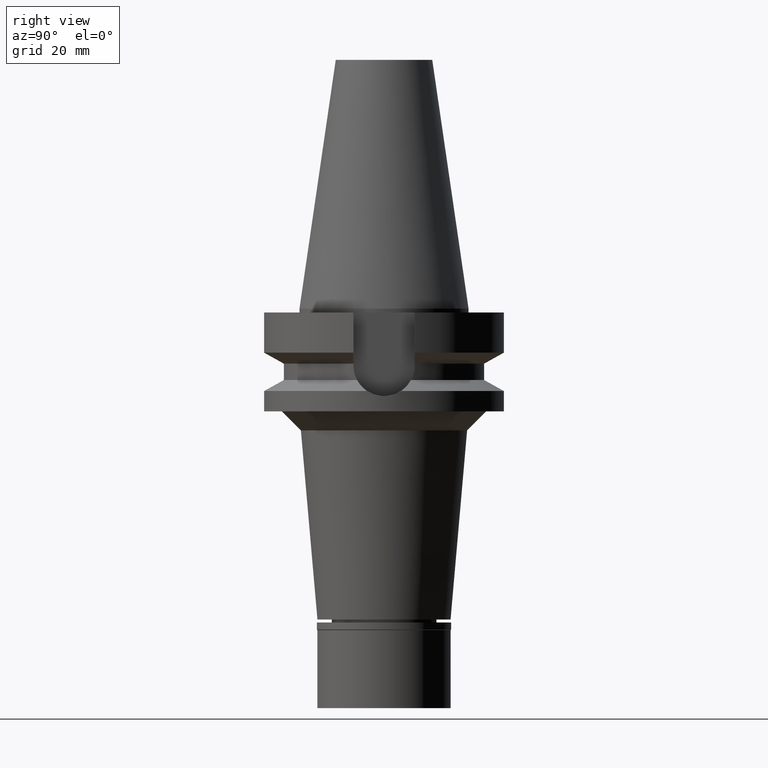
[diagram: clean part render]
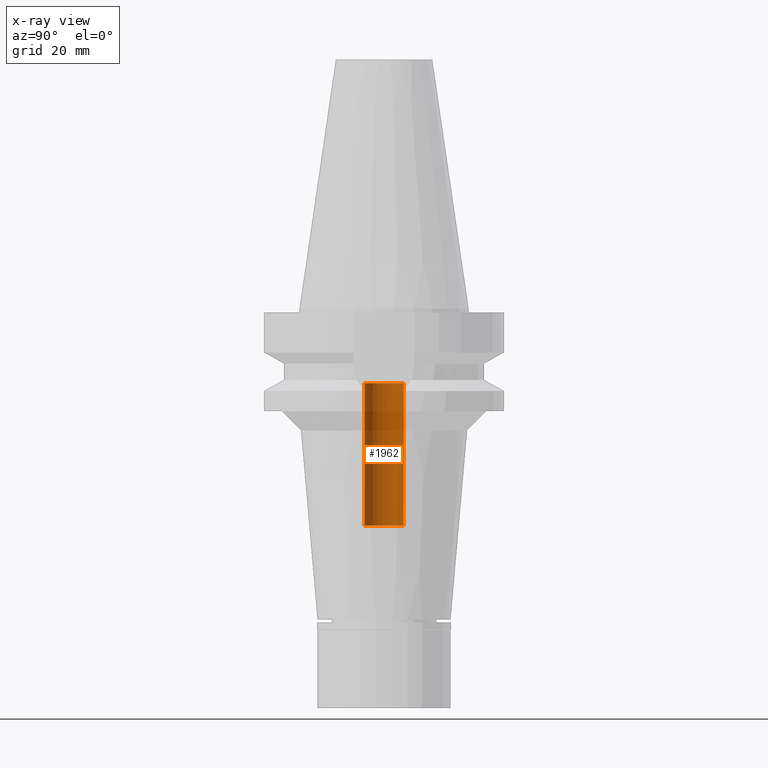
[diagram: x-ray — body ghosted, one internal face saturated and labeled with its STEP entity id]
A machine part, right view, then the same camera in x-ray: the body is ghosted and one INTERNAL B-rep face — a face not visible from any outside direction — is saturated and labeled: STEP entity #1962.
In plain terms, the highlighted cylindrical surface (edge-blend (fillet) strip) has radius 5.2 mm, axis along (0, 0, -1).
Its self-contained STEP definition (entity closure, byte-faithful):
#1 = VERTEX_POINT ( 'NONE', #1561 ) ;
#87 = CYLINDRICAL_SURFACE ( 'NONE', #1293, 5.200000000000000178 ) ;
#120 = DIRECTION ( 'NONE',  ( 0.0000000000000000000, 0.0000000000000000000, 1.000000000000000000 ) ) ;
#134 = DIRECTION ( 'NONE',  ( 0.0000000000000000000, 0.0000000000000000000, -1.000000000000000000 ) ) ;
#196 = ORIENTED_EDGE ( 'NONE', *, *, #1434, .T. ) ;
#287 = CARTESIAN_POINT ( 'NONE',  ( 0.0000000000000000000, 5.200000000000000178, -19.59999999999999787 ) ) ;
#309 = AXIS2_PLACEMENT_3D ( 'NONE', #1920, #1229, #2680 ) ;
#343 = ORIENTED_EDGE ( 'NONE', *, *, #1765, .F. ) ;
#480 = CIRCLE ( 'NONE', #834, 5.200000000000000178 ) ;
#565 = ORIENTED_EDGE ( 'NONE', *, *, #1914, .T. ) ;
#590 = DIRECTION ( 'NONE',  ( 0.0000000000000000000, 0.0000000000000000000, 1.000000000000000000 ) ) ;
#626 = LINE ( 'NONE', #1310, #1199 ) ;
#640 = VERTEX_POINT ( 'NONE', #2393 ) ;
#810 = CARTESIAN_POINT ( 'NONE',  ( 0.0000000000000000000, 2.125803146300000032E-14, -19.59999999999999787 ) ) ;
#834 = AXIS2_PLACEMENT_3D ( 'NONE', #810, #590, #1770 ) ;
#888 = VECTOR ( 'NONE', #120, 1000.000000000000000 ) ;
#1111 = VERTEX_POINT ( 'NONE', #287 ) ;
#1199 = VECTOR ( 'NONE', #1846, 1000.000000000000000 ) ;
#1229 = DIRECTION ( 'NONE',  ( 0.0000000000000000000, 0.0000000000000000000, -1.000000000000000000 ) ) ;
#1293 = AXIS2_PLACEMENT_3D ( 'NONE', #2560, #134, #1306 ) ;
#1306 = DIRECTION ( 'NONE',  ( 0.0000000000000000000, -1.000000000000000000, 0.0000000000000000000 ) ) ;
#1310 = CARTESIAN_POINT ( 'NONE',  ( 0.0000000000000000000, 5.200000000000000178, -57.00000000000000000 ) ) ;
#1434 = EDGE_CURVE ( 'NONE', #1921, #640, #2044, .T. ) ;
#1553 = CARTESIAN_POINT ( 'NONE',  ( 0.0000000000000000000, -5.200000000000000178, -57.00000000000000000 ) ) ;
#1561 = CARTESIAN_POINT ( 'NONE',  ( 0.0000000000000000000, -5.200000000000000178, -19.59999999999999787 ) ) ;
#1623 = FACE_OUTER_BOUND ( 'NONE', #2762, .T. ) ;
#1672 = EDGE_CURVE ( 'NONE', #640, #1111, #626, .T. ) ;
#1765 = EDGE_CURVE ( 'NONE', #1921, #1, #2767, .T. ) ;
#1770 = DIRECTION ( 'NONE',  ( 0.0000000000000000000, 1.000000000000000000, 0.0000000000000000000 ) ) ;
#1846 = DIRECTION ( 'NONE',  ( 0.0000000000000000000, 0.0000000000000000000, 1.000000000000000000 ) ) ;
#1914 = EDGE_CURVE ( 'NONE', #1111, #1, #480, .T. ) ;
#1920 = CARTESIAN_POINT ( 'NONE',  ( 0.0000000000000000000, 2.125803146300000032E-14, -57.00000000000000000 ) ) ;
#1921 = VERTEX_POINT ( 'NONE', #1553 ) ;
#1962 = ADVANCED_FACE ( 'NONE', ( #1623 ), #87, .F. ) ;
#1968 = ORIENTED_EDGE ( 'NONE', *, *, #1672, .T. ) ;
#2044 = CIRCLE ( 'NONE', #309, 5.200000000000000178 ) ;
#2298 = CARTESIAN_POINT ( 'NONE',  ( 0.0000000000000000000, -5.200000000000000178, -57.00000000000000000 ) ) ;
#2393 = CARTESIAN_POINT ( 'NONE',  ( 0.0000000000000000000, 5.200000000000000178, -57.00000000000000000 ) ) ;
#2560 = CARTESIAN_POINT ( 'NONE',  ( 0.0000000000000000000, 2.125803146300000032E-14, 73.58499999999999375 ) ) ;
#2680 = DIRECTION ( 'NONE',  ( 0.0000000000000000000, -1.000000000000000000, 0.0000000000000000000 ) ) ;
#2762 = EDGE_LOOP ( 'NONE', ( #565, #343, #196, #1968 ) ) ;
#2767 = LINE ( 'NONE', #2298, #888 ) ;